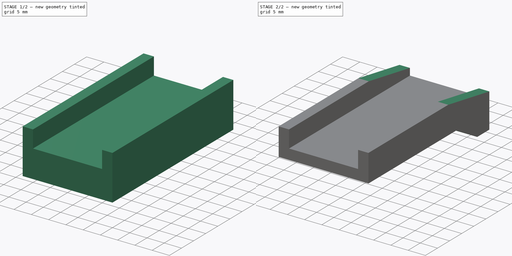
[diagram: build sequence overview — one tinted view per stage of 2, left to right]
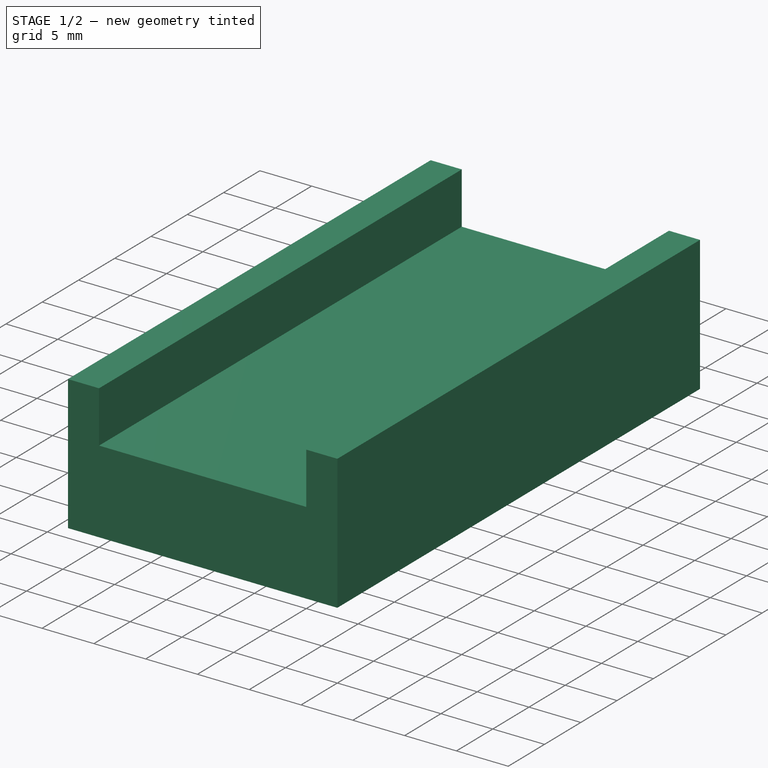
[diagram: stage 1 of 2 — iso view after this stage's code; geometry added in this stage tinted green]
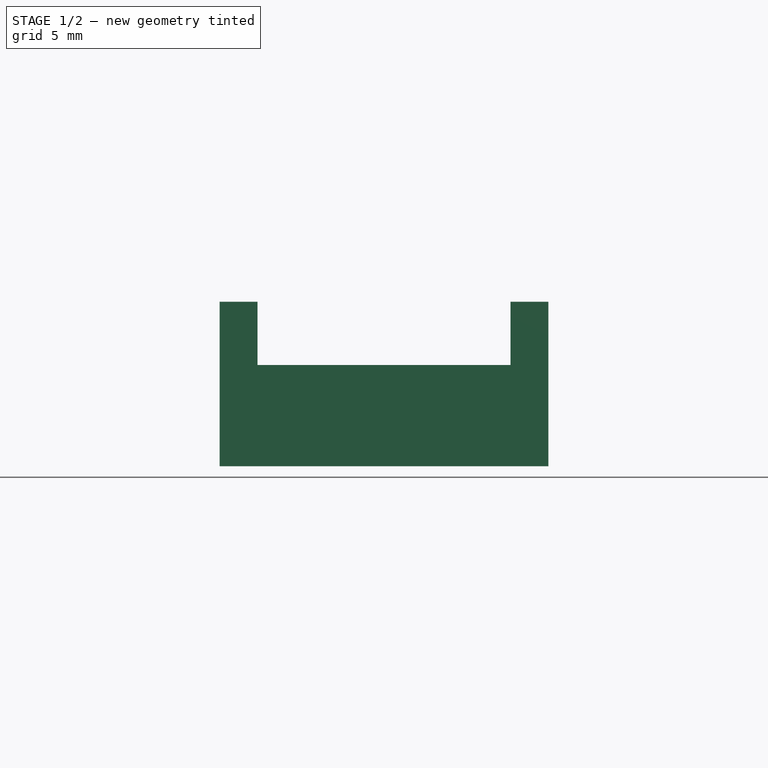
[diagram: stage 1 of 2 — front view after this stage's code; geometry added in this stage tinted green]
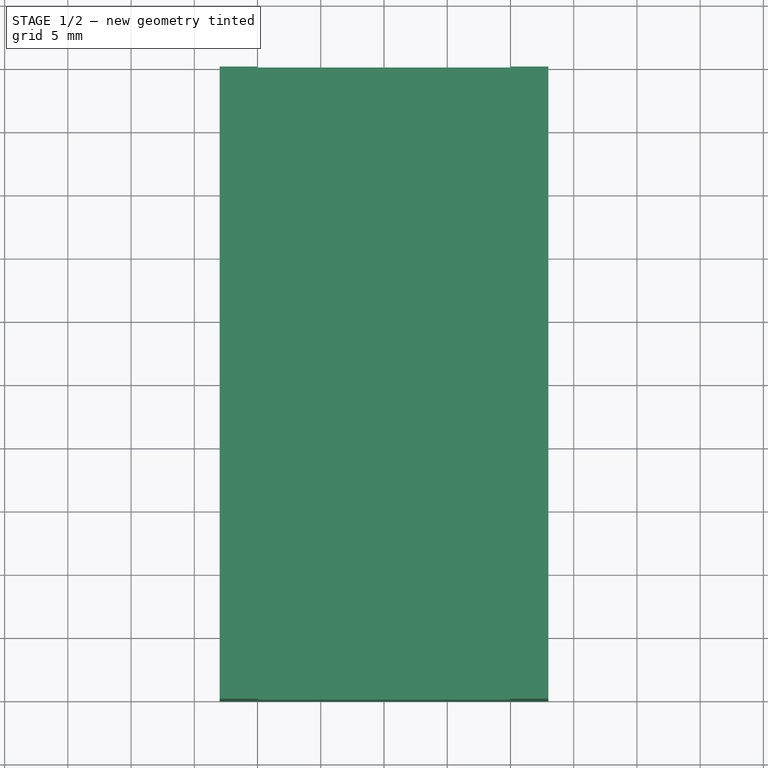
[diagram: stage 1 of 2 — top view after this stage's code; geometry added in this stage tinted green]
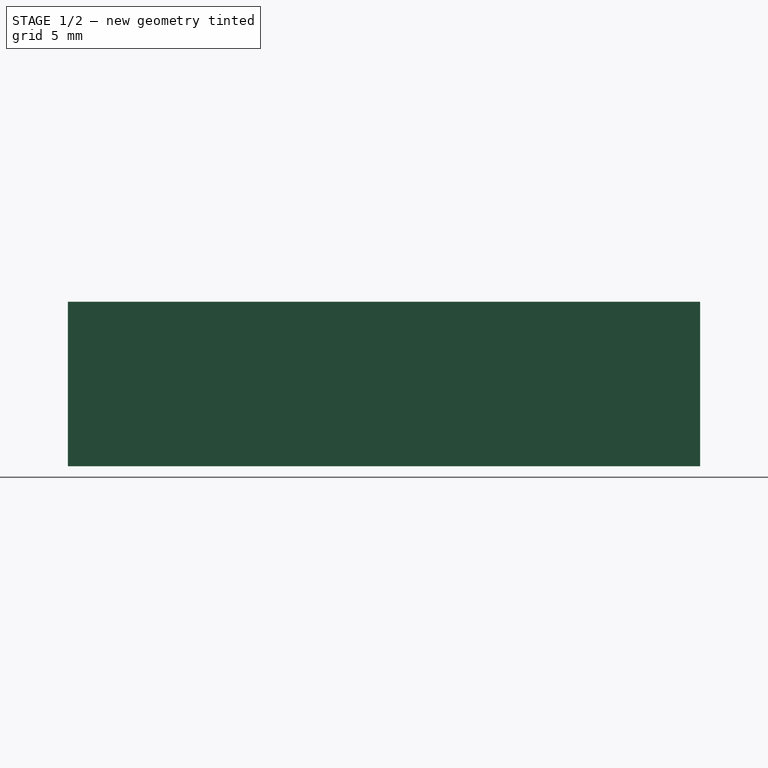
[diagram: stage 1 of 2 — right view after this stage's code; geometry added in this stage tinted green]
FCSTD DOCUMENT  (FreeCAD 0.19R)
Label: ilka
License: All rights reserved
LicenseURL: http://en.wikipedia.org/wiki/All_rights_reserved
objects: Sketcher::SketchObject×2, PartDesign::Pad×1, PartDesign::Pocket×1, PartDesign::Body×1
note: 7 computed .brp shape members not serialized (recipe doc carries the construction recipe); baked Part::Feature solids carry a one-line shape summary decoded from their .brp

FEATURE [Sketcher::SketchObject] Sketch
  FullyConstrained = true
  MapMode = 5
  Placement = pos=(0,0,0) rot=(1,0,0;1.5708rad)
  Support = -> [XZ_Plane]
  sketch-geometry (8):
    g0: LineSegment StartX=-13 StartY=5 StartZ=0 EndX=-13 EndY=-8 EndZ=0
    g1: LineSegment StartX=-13 StartY=-8 StartZ=0 EndX=13 EndY=-8 EndZ=0
    g2: LineSegment StartX=13 StartY=-8 StartZ=0 EndX=13 EndY=5 EndZ=0
    g3: LineSegment StartX=13 StartY=5 StartZ=0 EndX=10 EndY=5 EndZ=0
    g4: LineSegment StartX=10 StartY=5 StartZ=0 EndX=10 EndY=0 EndZ=0
    g5: LineSegment StartX=10 StartY=0 StartZ=0 EndX=-10 EndY=0 EndZ=0
    g6: LineSegment StartX=-10 StartY=0 StartZ=0 EndX=-10 EndY=5 EndZ=0
    g7: LineSegment StartX=-10 StartY=5 StartZ=0 EndX=-13 EndY=5 EndZ=0
  constraints (23):
    c: Coincident(g0,g1)
    c: Coincident(g1,g2)
    c: Coincident(g2,g3)
    c: Coincident(g3,g4)
    c: PointOnObject(g4,g-1)
    c: Coincident(g4,g5)
    c: Coincident(g5,g6)
    c: Coincident(g6,g7)
    c: Coincident(g7,g0)
    c: Horizontal(g7)
    c: Horizontal(g3)
    c: Horizontal(g1)
    c: Vertical(g4)
    c: Vertical(g2)
    c: Vertical(g6)
    c: Vertical(g0)
    c: Symmetric(g5,g5,g-1)
    c: Equal(g7,g3)
    c: Distance(g3) = 3
    c: Distance(g4) = 5
    c: Equal(g4,g6)
    c: Distance(g5) = 20
    c: Distance(g1,g-1) = 8
FEATURE [PartDesign::Pad] Pad
  Direction = (1,1,1)
  Length = 50
  Length2 = 100
  Placement = pos=(0,0,0) rot=(1,0,0;1.5708rad)
  Profile = -> Sketch
  Type = 0
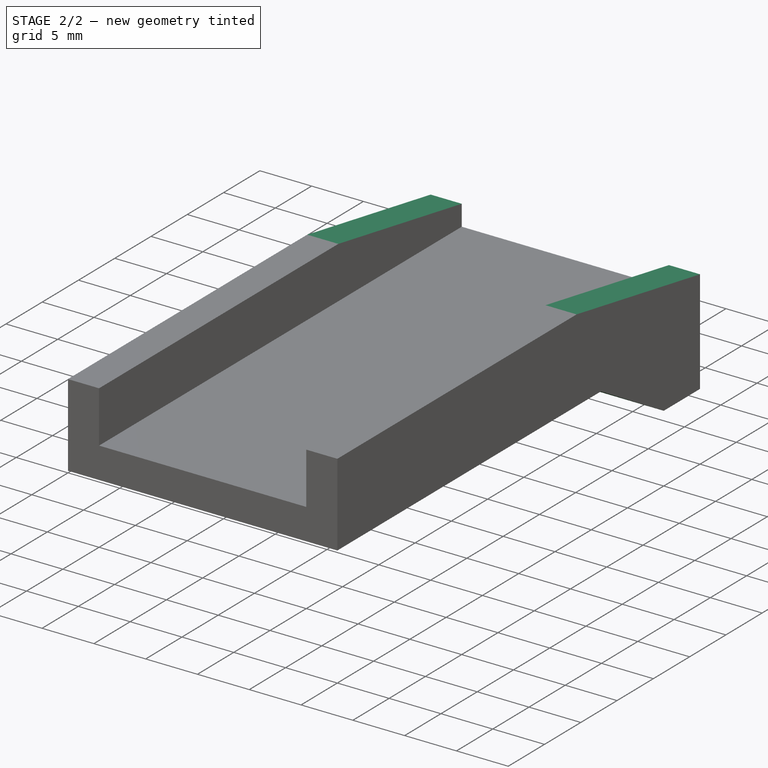
[diagram: stage 2 of 2 — iso view after this stage's code; geometry added in this stage tinted green]
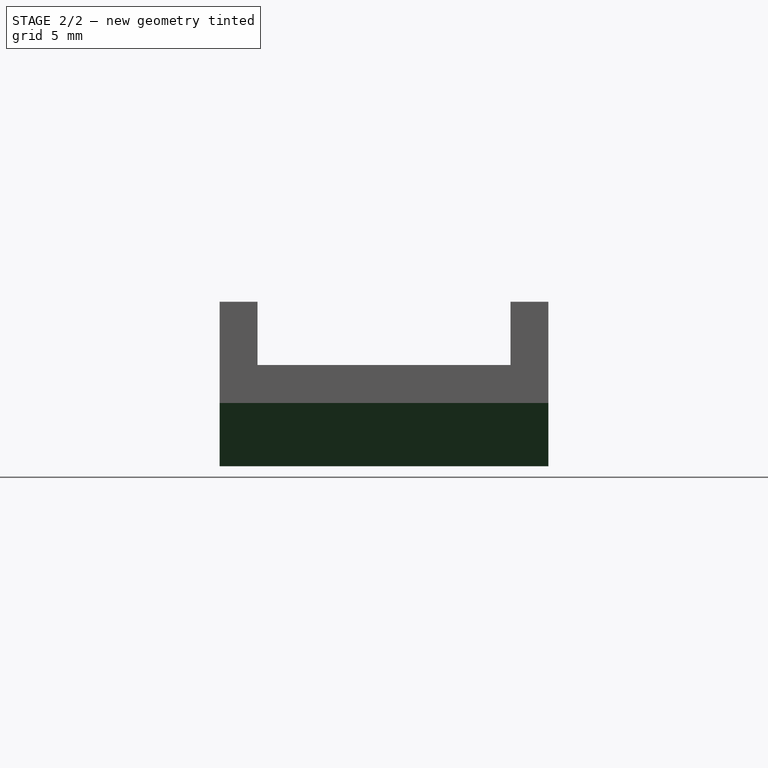
[diagram: stage 2 of 2 — front view after this stage's code; geometry added in this stage tinted green]
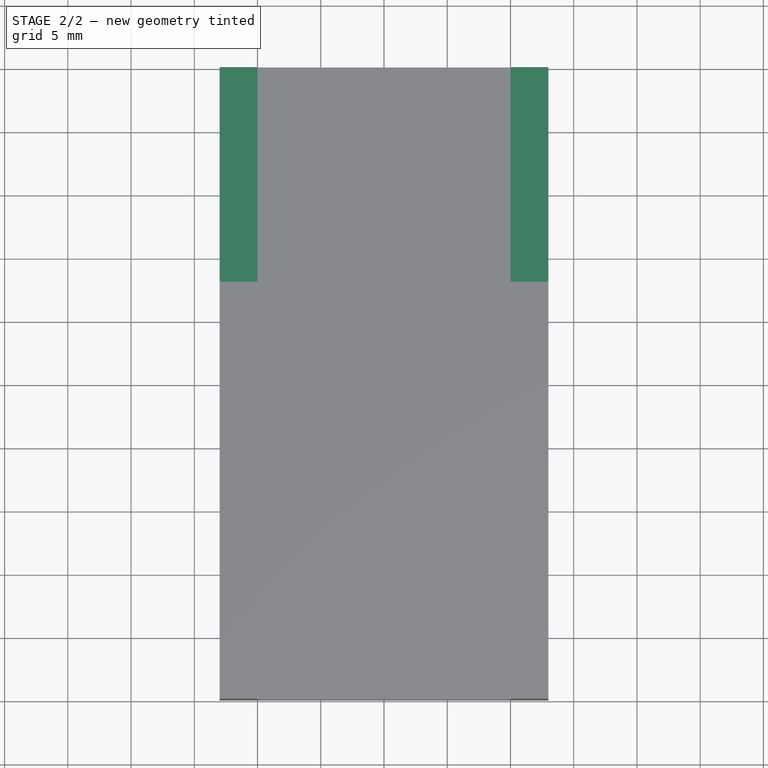
[diagram: stage 2 of 2 — top view after this stage's code; geometry added in this stage tinted green]
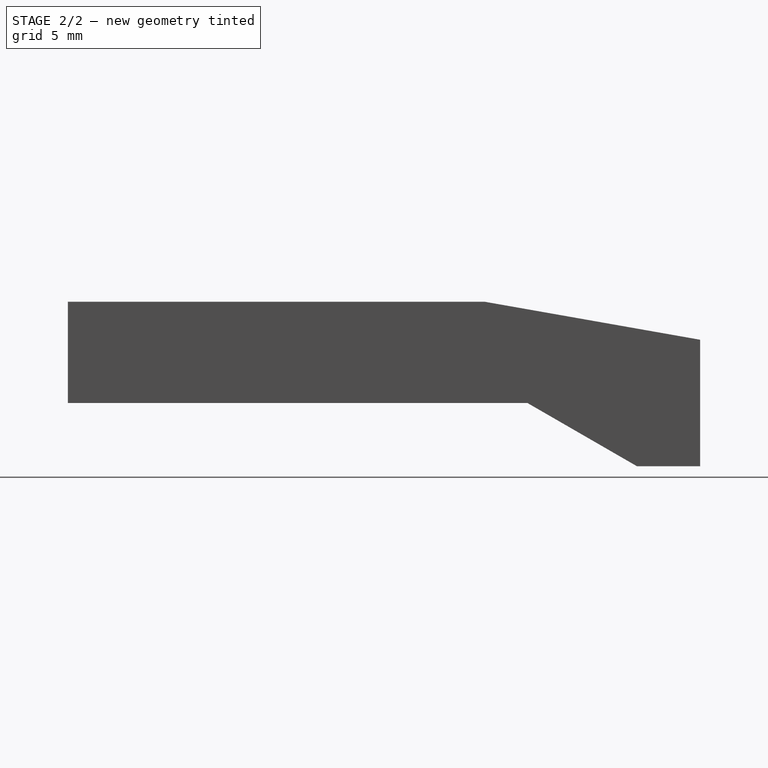
[diagram: stage 2 of 2 — right view after this stage's code; geometry added in this stage tinted green]
FEATURE [Sketcher::SketchObject] Sketch001
  ExternalGeometry = -> [Pad]
  FullyConstrained = true
  MapMode = 5
  Placement = pos=(0,0,0) rot=(0.57735,0.57735,0.57735;2.0944rad)
  Support = -> [YZ_Plane]
  sketch-geometry (7):
    g0: LineSegment StartX=-17.0138 StartY=5 StartZ=0 EndX=3.6e-15 EndY=2 EndZ=0
    g1: LineSegment StartX=3.6e-15 StartY=2 StartZ=0 EndX=3.6e-15 EndY=5 EndZ=0
    g2: LineSegment StartX=3.6e-15 StartY=5 StartZ=0 EndX=-17.0138 EndY=5 EndZ=0
    g3: LineSegment StartX=-50 StartY=-3 StartZ=0 EndX=-50 EndY=-8 EndZ=0
    g4: LineSegment StartX=-50 StartY=-8 StartZ=0 EndX=-5 EndY=-8 EndZ=0
    g5: LineSegment StartX=-5 StartY=-8 StartZ=0 EndX=-13.6603 EndY=-3 EndZ=0
    g6: LineSegment StartX=-13.6603 StartY=-3 StartZ=0 EndX=-50 EndY=-3 EndZ=0
  constraints (19):
    c: Coincident(g0,g1)
    c: Coincident(g1,g2)
    c: Coincident(g2,g0)
    c: Horizontal(g2)
    c: Coincident(g1,g-4)
    c: Vertical(g1)
    c: Angle(g0,g2) = 0.174533
    c: Distance(g1) = 3
    c: Coincident(g3,g4)
    c: Horizontal(g4)
    c: Coincident(g4,g5)
    c: Coincident(g5,g6)
    c: Coincident(g6,g3)
    c: Horizontal(g6)
    c: Vertical(g3)
    c: Coincident(g3,g-5)
    c: Distance(g3) = 5
    c: Distance(g4,g-2) = 5
    c: Angle(g5,g4) = 0.523599
FEATURE [PartDesign::Pocket] Pocket
  BaseFeature = -> Pad
  Length = 5
  Length2 = 100
  Midplane = true
  Placement = pos=(0,0,0) rot=(1,0,0;1.5708rad)
  Profile = -> Sketch001
  Type = 1
FEATURE [PartDesign::Body] Body
  Group = -> [Sketch,Pad,Sketch001,Pocket]
  Origin = -> Origin
  Tip = -> Pocket
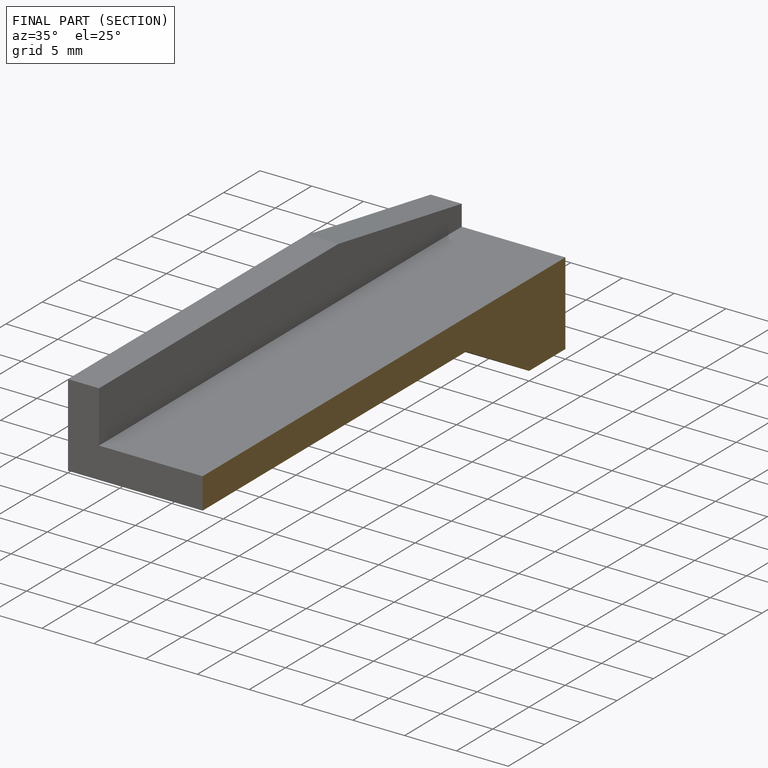
[diagram: finished part — half-section view (interior)]
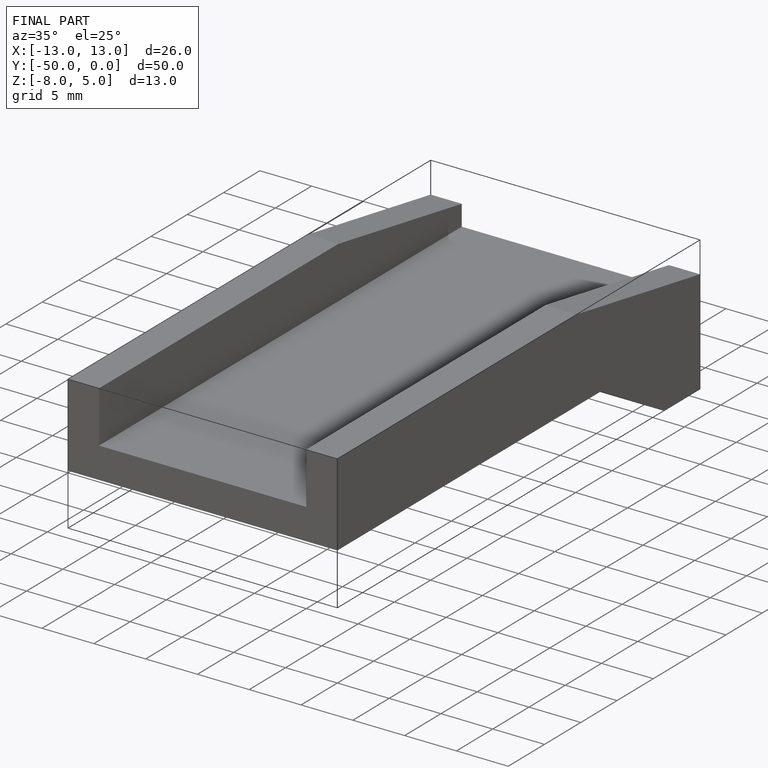
[diagram: finished part — iso view with bounding-box wireframe]
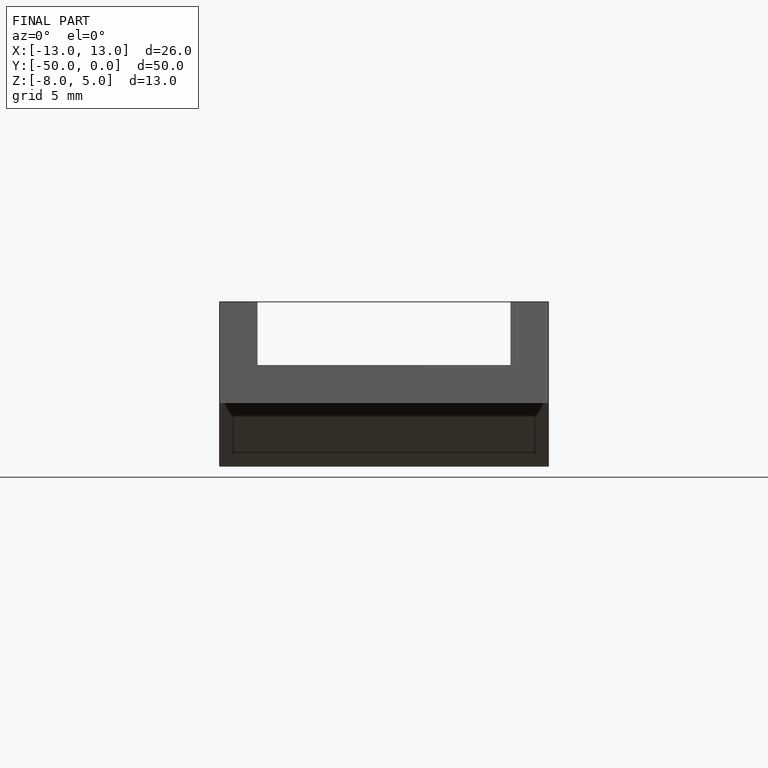
[diagram: finished part — front view with bounding-box wireframe]
